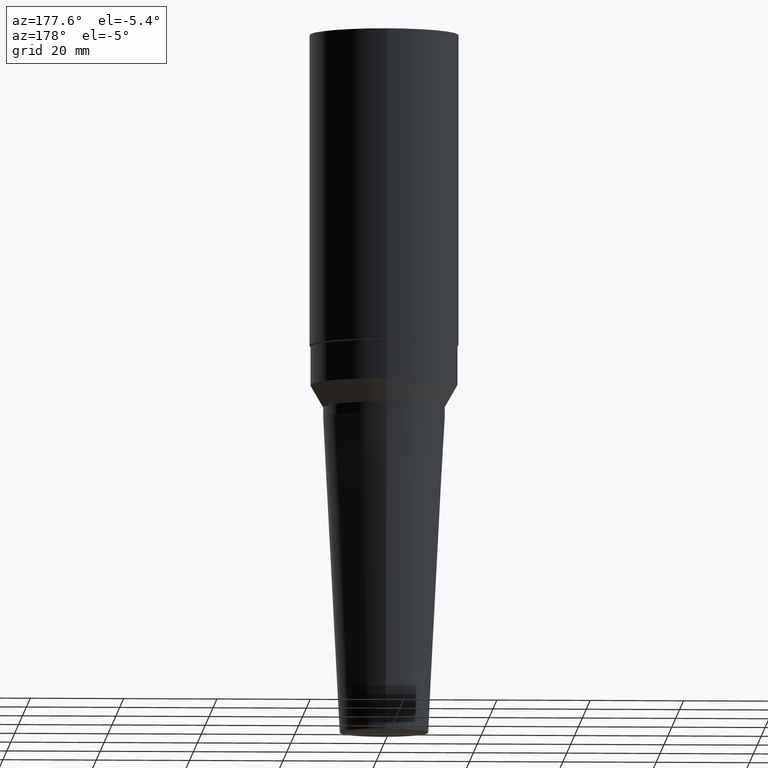
[diagram: clean part render]
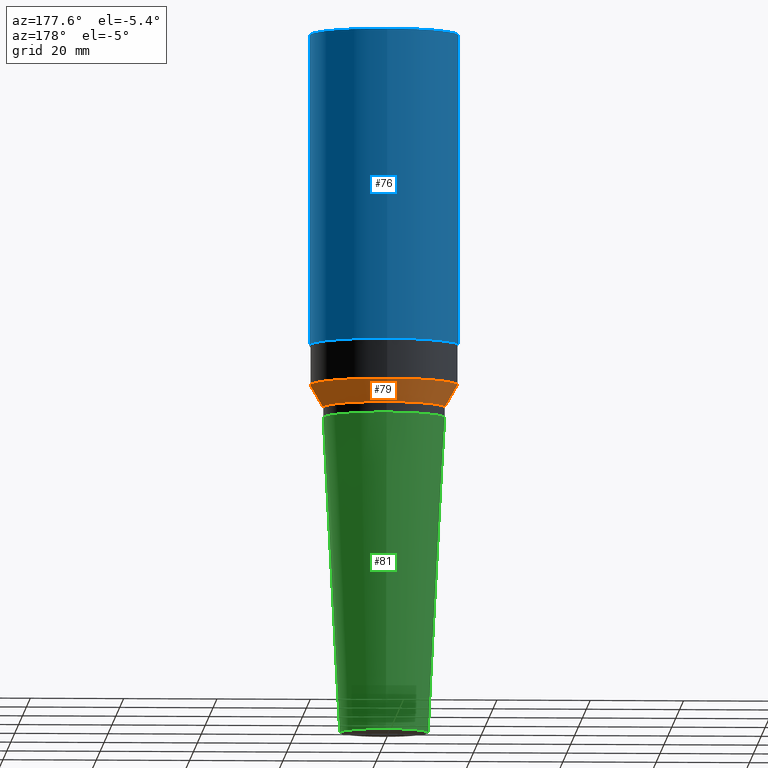
[diagram: same view with three faces highlighted in distinct colors, each labeled with its STEP entity id]
A machine part, auxiliary view with three faces highlighted in distinct colors.
Their STEP definitions:

[orange] entity #79 — the highlighted conical surface has half-angle 30 deg.
#79=ADVANCED_FACE('',(#95,#96),#97,.T.);
#95=FACE_BOUND('',#117,.T.);
#96=FACE_BOUND('',#118,.T.);
#97=CONICAL_SURFACE('',#119,14.425,0.523598775672336);
#117=EDGE_LOOP('',(#147));
#118=EDGE_LOOP('',(#148));
#119=AXIS2_PLACEMENT_3D('',#149,#150,#151);
#147=ORIENTED_EDGE('',*,*,#170,.F.);
#148=ORIENTED_EDGE('',*,*,#169,.T.);
#149=CARTESIAN_POINT('',(-4.43209289231548E-015,-8.86418578463095E-015,72.38156986));
#150=DIRECTION('',(-6.12323399573677E-017,-1.22464679914735E-016,1.0));
#151=DIRECTION('',(-1.23259516440783E-032,1.0,1.22464679914735E-016));
#169=EDGE_CURVE('',#179,#179,#180,.T.);
#170=EDGE_CURVE('',#181,#181,#182,.T.);
#179=VERTEX_POINT('',#193);
#180=CIRCLE('',#194,15.8);
#181=VERTEX_POINT('',#195);
#182=CIRCLE('',#196,13.05);
#193=CARTESIAN_POINT('',(-4.57792198761522E-015,15.8,74.76313972));
#194=AXIS2_PLACEMENT_3D('',#210,#211,#212);
#195=CARTESIAN_POINT('',(-4.28626379701574E-015,13.05,70.0));
#196=AXIS2_PLACEMENT_3D('',#213,#214,#215);
#210=CARTESIAN_POINT('',(-4.57792198761522E-015,-9.15584397523043E-015,74.76313972));
#211=DIRECTION('',(6.12323399573677E-017,1.22464679914735E-016,-1.0));
#212=DIRECTION('',(-1.23259516440783E-032,1.0,1.22464679914735E-016));
#213=CARTESIAN_POINT('',(-4.28626379701574E-015,-8.57252759403147E-015,70.0));
#214=DIRECTION('',(6.12323399573677E-017,1.22464679914735E-016,-1.0));
#215=DIRECTION('',(-1.23259516440783E-032,1.0,1.22464679914735E-016));

[blue] entity #76 — the highlighted cylindrical surface (bore or boss wall) has radius 16 mm, axis along (-0, -0, 1).
#76=ADVANCED_FACE('',(#86,#87),#88,.T.);
#86=FACE_BOUND('',#108,.T.);
#87=FACE_BOUND('',#109,.T.);
#88=CYLINDRICAL_SURFACE('',#110,16.0);
#108=EDGE_LOOP('',(#132));
#109=EDGE_LOOP('',(#133));
#110=AXIS2_PLACEMENT_3D('',#134,#135,#136);
#132=ORIENTED_EDGE('',*,*,#167,.F.);
#133=ORIENTED_EDGE('',*,*,#166,.T.);
#134=CARTESIAN_POINT('',(-7.14417335737424E-015,-1.42883467147485E-014,116.67320508));
#135=DIRECTION('',(-6.12323399573677E-017,-1.22464679914735E-016,1.0));
#136=DIRECTION('',(-1.23259516440783E-032,1.0,1.22464679914735E-016));
#166=EDGE_CURVE('',#173,#173,#174,.T.);
#167=EDGE_CURVE('',#175,#175,#176,.T.);
#173=VERTEX_POINT('',#187);
#174=CIRCLE('',#188,16.0);
#175=VERTEX_POINT('',#189);
#176=CIRCLE('',#190,16.0);
#187=CARTESIAN_POINT('',(-9.18485099360515E-015,16.0,150.0));
#188=AXIS2_PLACEMENT_3D('',#201,#202,#203);
#189=CARTESIAN_POINT('',(-5.10349572114332E-015,16.0,83.34641016));
#190=AXIS2_PLACEMENT_3D('',#204,#205,#206);
#201=CARTESIAN_POINT('',(-9.18485099360515E-015,-1.83697019872103E-014,150.0));
#202=DIRECTION('',(6.12323399573677E-017,1.22464679914735E-016,-1.0));
#203=DIRECTION('',(-1.23259516440783E-032,1.0,1.22464679914735E-016));
#204=CARTESIAN_POINT('',(-5.10349572114332E-015,-1.02069914422866E-014,83.34641016));
#205=DIRECTION('',(6.12323399573677E-017,1.22464679914735E-016,-1.0));
#206=DIRECTION('',(-1.23259516440783E-032,1.0,1.22464679914735E-016));

[green] entity #81 — the highlighted conical surface has half-angle 3 deg.
#81=ADVANCED_FACE('',(#101,#102),#103,.T.);
#101=FACE_BOUND('',#123,.T.);
#102=FACE_BOUND('',#124,.T.);
#103=CONICAL_SURFACE('',#125,11.2750000010934,0.0523598775287403);
#123=EDGE_LOOP('',(#157));
#124=EDGE_LOOP('',(#158));
#125=AXIS2_PLACEMENT_3D('',#159,#160,#161);
#157=ORIENTED_EDGE('',*,*,#172,.F.);
#158=ORIENTED_EDGE('',*,*,#171,.T.);
#159=CARTESIAN_POINT('',(-2.07387920092992E-015,-4.14775840185983E-015,33.86901762));
#160=DIRECTION('',(-6.12323399573676E-017,-1.22464679914735E-016,1.0));
#161=DIRECTION('',(-1.23259516440783E-032,1.0,1.22464679914735E-016));
#171=EDGE_CURVE('',#183,#183,#184,.T.);
#172=EDGE_CURVE('',#185,#185,#186,.T.);
#183=VERTEX_POINT('',#197);
#184=CIRCLE('',#198,13.05);
#185=VERTEX_POINT('',#199);
#186=CIRCLE('',#200,9.50000000218675);
#197=CARTESIAN_POINT('',(-4.14775840185983E-015,13.05,67.73803524));
#198=AXIS2_PLACEMENT_3D('',#216,#217,#218);
#199=CARTESIAN_POINT('',(0.0,9.50000000218675,0.0));
#200=AXIS2_PLACEMENT_3D('',#219,#220,#221);
#216=CARTESIAN_POINT('',(-4.14775840185983E-015,-8.29551680371966E-015,67.73803524));
#217=DIRECTION('',(6.12323399573677E-017,1.22464679914735E-016,-1.0));
#218=DIRECTION('',(-1.23259516440783E-032,1.0,1.22464679914735E-016));
#219=CARTESIAN_POINT('',(0.0,0.0,0.0));
#220=DIRECTION('',(6.12323399573677E-017,1.22464679914735E-016,-1.0));
#221=DIRECTION('',(-1.23259516440783E-032,1.0,1.22464679914735E-016));